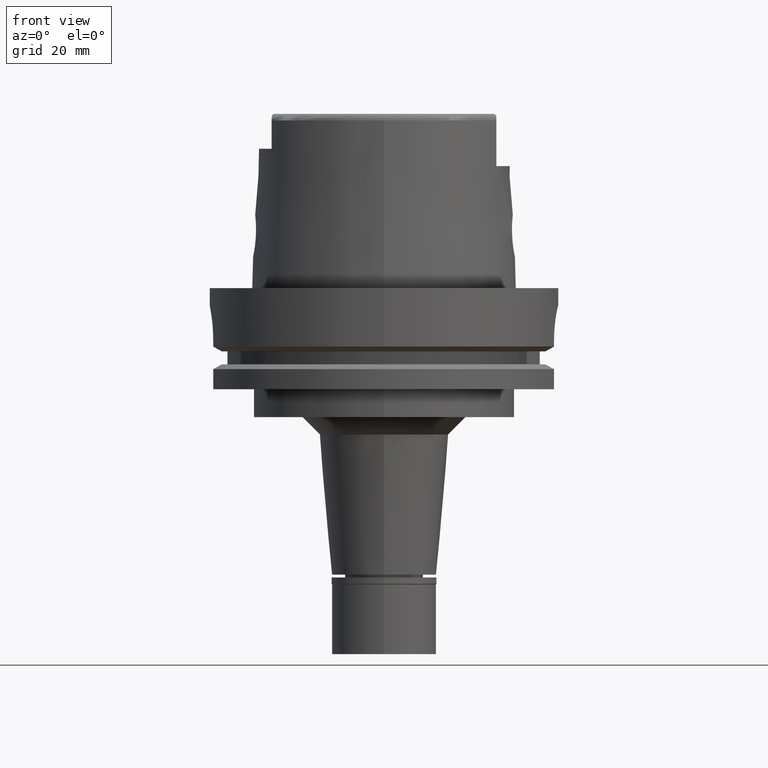
[diagram: clean part render]
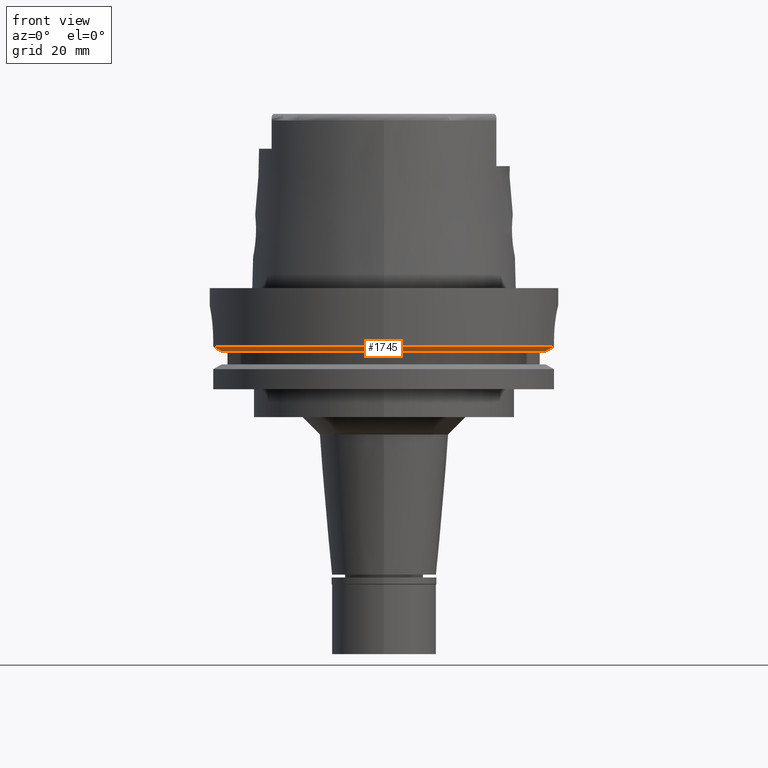
[diagram: same view with one face highlighted and labeled with its STEP entity id]
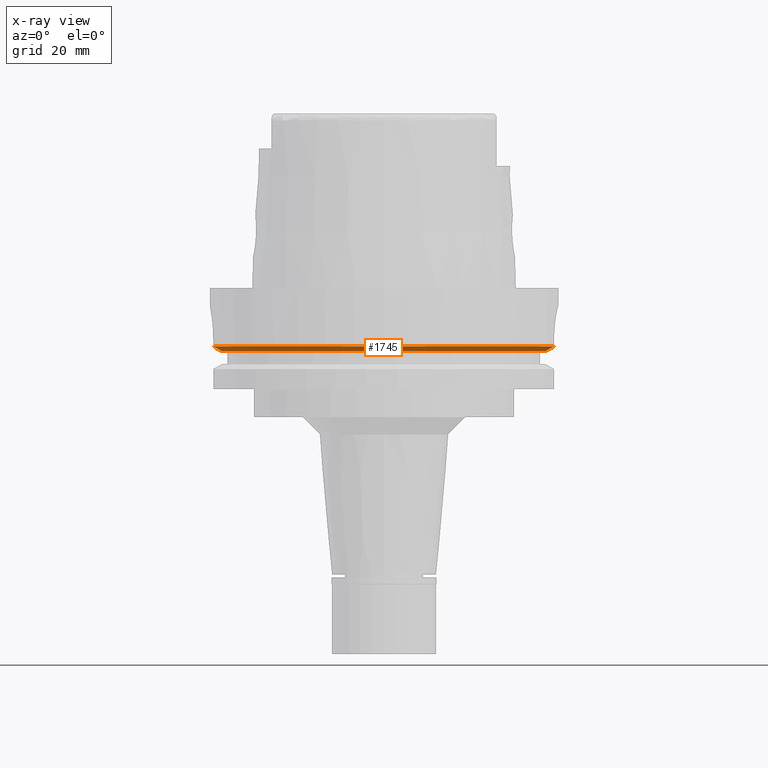
[diagram: x-ray of the same camera — body ghosted, the highlighted face saturated]
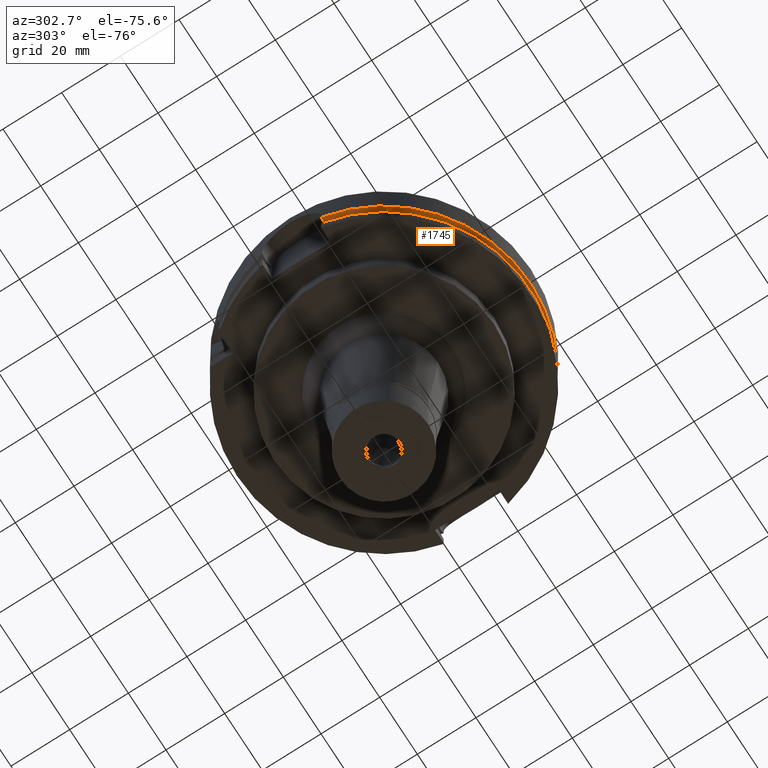
[diagram: same view with one face highlighted and labeled with its STEP entity id]
A machine part, front view. The second image highlights one B-rep face of the part: STEP entity #1745.
The next image is the same camera in x-ray: the body ghosted, the highlighted face saturated — about 0% of this face is hidden behind the body in this view.
A second angle (auxiliary view) of the same face is appended — the face is thin or edge-on in the first view.
In plain terms, the highlighted conical surface has half-angle 60 deg.
Its self-contained STEP definition (entity closure, byte-faithful):
#161 = B_SPLINE_CURVE_WITH_KNOTS ( 'NONE', 3,
 ( #345, #3793, #4125, #4663, #1643, #283 ),
 .UNSPECIFIED., .F., .F.,
 ( 4, 1, 1, 4 ),
 ( 0.0000000000000000000, 0.3333333333333000081, 0.6666666666667000474, 1.000000000000000000 ),
 .UNSPECIFIED. ) ;
#283 = CARTESIAN_POINT ( 'NONE',  ( -48.98979485565999425, -10.00000000000000000, -16.75240473580999989 ) ) ;
#345 = CARTESIAN_POINT ( 'NONE',  ( -46.56083740329999898, -10.00000000000000000, -18.12500000000000000 ) ) ;
#483 = DIRECTION ( 'NONE',  ( -0.9777047459300259868, -0.2099843560504055240, 0.0000000000000000000 ) ) ;
#532 = CARTESIAN_POINT ( 'NONE',  ( 46.60605711264999940, -11.00000000000000000, -17.97261191788999923 ) ) ;
#588 = DIRECTION ( 'NONE',  ( 0.0000000000000000000, 0.0000000000000000000, 1.000000000000000000 ) ) ;
#825 = DIRECTION ( 'NONE',  ( 0.0000000000000000000, 0.0000000000000000000, 1.000000000000000000 ) ) ;
#916 = CARTESIAN_POINT ( 'NONE',  ( 0.0000000000000000000, 0.0000000000000000000, -18.12500000000000000 ) ) ;
#937 = FACE_OUTER_BOUND ( 'NONE', #2876, .T. ) ;
#1040 = CARTESIAN_POINT ( 'NONE',  ( 0.0000000000000000000, 0.0000000000000000000, -16.75240473580999989 ) ) ;
#1044 = VERTEX_POINT ( 'NONE', #4551 ) ;
#1452 = VERTEX_POINT ( 'NONE', #3169 ) ;
#1473 = EDGE_CURVE ( 'NONE', #3801, #1452, #2749, .T. ) ;
#1643 = CARTESIAN_POINT ( 'NONE',  ( -48.72002593967000195, -10.00000000000000000, -16.90500907969000011 ) ) ;
#1745 = ADVANCED_FACE ( 'NONE', ( #937 ), #1765, .T. ) ;
#1765 = CONICAL_SURFACE ( 'NONE', #3842, 48.81129763208999606, 1.047197551196400456 ) ;
#1854 = CARTESIAN_POINT ( 'NONE',  ( 47.96191616323000062, -11.00000000000000000, -17.21020456769999996 ) ) ;
#1870 = CIRCLE ( 'NONE', #5027, 49.99999999999997868 ) ;
#1911 = CARTESIAN_POINT ( 'NONE',  ( 48.50399904748000068, -11.00000000000000000, -16.90503024962000111 ) ) ;
#2002 = VERTEX_POINT ( 'NONE', #4837 ) ;
#2083 = VERTEX_POINT ( 'NONE', #3825 ) ;
#2157 = CARTESIAN_POINT ( 'NONE',  ( 0.0000000000000000000, 0.0000000000000000000, -17.43870236789999950 ) ) ;
#2318 = DIRECTION ( 'NONE',  ( 0.0000000000000000000, -1.000000000000000000, 0.0000000000000000000 ) ) ;
#2324 = AXIS2_PLACEMENT_3D ( 'NONE', #916, #2636, #483 ) ;
#2371 = B_SPLINE_CURVE_WITH_KNOTS ( 'NONE', 3,
 ( #3189, #1911, #1854, #2761, #532, #4369 ),
 .UNSPECIFIED., .F., .F.,
 ( 4, 1, 1, 4 ),
 ( 0.0000000000000000000, 0.3333333333333000081, 0.6666666666667000474, 1.000000000000000000 ),
 .UNSPECIFIED. ) ;
#2636 = DIRECTION ( 'NONE',  ( 0.0000000000000000000, 0.0000000000000000000, 1.000000000000000000 ) ) ;
#2741 = ORIENTED_EDGE ( 'NONE', *, *, #3514, .F. ) ;
#2749 = CIRCLE ( 'NONE', #3388, 50.00000000000000000 ) ;
#2761 = CARTESIAN_POINT ( 'NONE',  ( 47.14851446809999658, -11.00000000000000000, -17.66774350266999960 ) ) ;
#2776 = CIRCLE ( 'NONE', #2324, 47.62259526419000366 ) ;
#2846 = CARTESIAN_POINT ( 'NONE',  ( 0.0000000000000000000, 0.0000000000000000000, -16.75240473580999989 ) ) ;
#2876 = EDGE_LOOP ( 'NONE', ( #3229, #2741, #5315, #3184, #3433 ) ) ;
#2885 = CARTESIAN_POINT ( 'NONE',  ( 0.0000000000000000000, -50.00000000000000000, -16.75240473580999989 ) ) ;
#3169 = CARTESIAN_POINT ( 'NONE',  ( 48.77499359303000404, -11.00000000000000000, -16.75240473580999989 ) ) ;
#3184 = ORIENTED_EDGE ( 'NONE', *, *, #4746, .F. ) ;
#3189 = CARTESIAN_POINT ( 'NONE',  ( 48.77499359303000404, -11.00000000000000000, -16.75240473580999989 ) ) ;
#3229 = ORIENTED_EDGE ( 'NONE', *, *, #5412, .T. ) ;
#3299 = DIRECTION ( 'NONE',  ( -0.9797958971132723072, -0.1999999999999946265, 0.0000000000000000000 ) ) ;
#3388 = AXIS2_PLACEMENT_3D ( 'NONE', #1040, #588, #2318 ) ;
#3433 = ORIENTED_EDGE ( 'NONE', *, *, #5490, .F. ) ;
#3514 = EDGE_CURVE ( 'NONE', #1452, #2002, #2371, .T. ) ;
#3793 = CARTESIAN_POINT ( 'NONE',  ( -46.83084020607000042, -10.00000000000000000, -17.97258933137000270 ) ) ;
#3801 = VERTEX_POINT ( 'NONE', #2885 ) ;
#3825 = CARTESIAN_POINT ( 'NONE',  ( -48.98979485565999425, -10.00000000000000000, -16.75240473580999989 ) ) ;
#3842 = AXIS2_PLACEMENT_3D ( 'NONE', #2157, #825, #4320 ) ;
#4125 = CARTESIAN_POINT ( 'NONE',  ( -47.37076227628000424, -10.00000000000000000, -17.66769351206999872 ) ) ;
#4320 = DIRECTION ( 'NONE',  ( 0.0000000000000000000, 1.000000000000000000, 0.0000000000000000000 ) ) ;
#4369 = CARTESIAN_POINT ( 'NONE',  ( 46.33477721644000269, -11.00000000000000000, -18.12500000000000000 ) ) ;
#4551 = CARTESIAN_POINT ( 'NONE',  ( -46.56083740329999898, -10.00000000000000000, -18.12500000000000000 ) ) ;
#4663 = CARTESIAN_POINT ( 'NONE',  ( -48.18041161677000161, -10.00000000000000000, -17.21015586611000003 ) ) ;
#4746 = EDGE_CURVE ( 'NONE', #2083, #3801, #1870, .T. ) ;
#4823 = DIRECTION ( 'NONE',  ( 0.0000000000000000000, 0.0000000000000000000, 1.000000000000000000 ) ) ;
#4837 = CARTESIAN_POINT ( 'NONE',  ( 46.33477721644000269, -11.00000000000000000, -18.12500000000000000 ) ) ;
#5027 = AXIS2_PLACEMENT_3D ( 'NONE', #2846, #4823, #3299 ) ;
#5315 = ORIENTED_EDGE ( 'NONE', *, *, #1473, .F. ) ;
#5412 = EDGE_CURVE ( 'NONE', #1044, #2002, #2776, .T. ) ;
#5490 = EDGE_CURVE ( 'NONE', #1044, #2083, #161, .T. ) ;